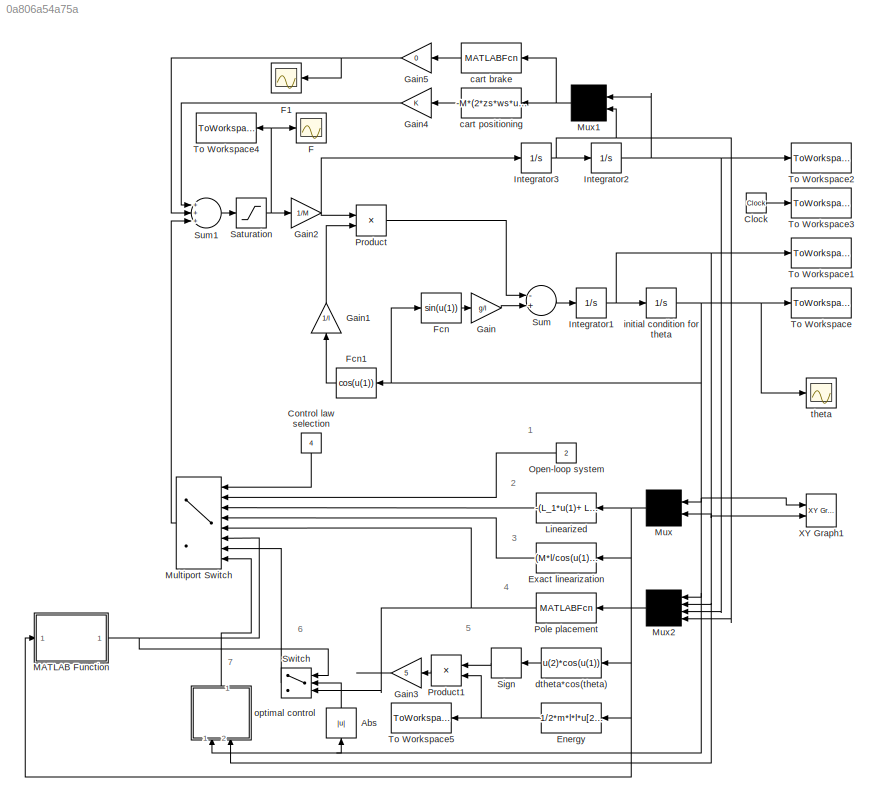
MODEL slx_0a806a54a75a
KIND model
CONFIG AbsTol = 1e-6
CONFIG EnableMultiTasking = off
CONFIG FixedStep = auto
CONFIG MaxStep = auto
CONFIG MinStep = auto
CONFIG RelTol = 1e-5
CONFIG SampleTimeConstraint = Unconstrained
CONFIG Solver = ode45
CONFIG SolverName = ode45
CONFIG StartTime = 0.0
CONFIG StopTime = 30
BLOCK [Fcn]  Linearized
  Expr = -(L_1*u(1)+ L_2*u(2))
BLOCK [Abs] Abs
BLOCK [Clock] Clock
BLOCK [Constant] Control law selection
  Value = 4
BLOCK [Fcn] Energy
  Expr = 1/2*m*l*l*u[2]*u[2]+(cos(u[1])-1)*m*g*l
BLOCK [Fcn] Exact linearization
  Expr = (M*l/cos(u(1)))*(((g/l)*sin(u(1))) + ((22.86)*u(1) + (40.5848)*u(2)))
BLOCK [Scope] F
  NumInputPorts = 1
  Ports = [1]
  ScopeSpecificationString = Simulink.scopes.TimeScopeBlockCfg('CurrentConfiguration', extmgr.ConfigurationSet(extmgr.Configuration('Core','General UI',true),extmgr.Configuration('Core','Source UI',true),extmgr.Configuration('Sources','WiredSimulink',true,'DataLoggingLimitDataPoints',true,'DataLoggingSaveFormat','Array','DataLoggingDecimation','1','DataLoggingDecimateData',true),extmgr.Configuration('Visuals','Time Domain',tr...<+882ch>
BLOCK [Scope] F1
  NumInputPorts = 1
  Ports = [1]
  ScopeSpecificationString = Simulink.scopes.TimeScopeBlockCfg('CurrentConfiguration', extmgr.ConfigurationSet(extmgr.Configuration('Core','General UI',true),extmgr.Configuration('Core','Source UI',true),extmgr.Configuration('Sources','WiredSimulink',true,'DataLoggingLimitDataPoints',true,'DataLoggingSaveFormat','Array','DataLoggingDecimation','1','DataLoggingDecimateData',true),extmgr.Configuration('Visuals','Time Domain',tr...<+882ch>
BLOCK [Fcn] Fcn
  Expr = sin(u(1))
BLOCK [Fcn] Fcn1
  Expr = cos(u(1))
BLOCK [Gain] Gain
  Gain = g/l
BLOCK [Gain] Gain1
  Gain = 1/l
BLOCK [Gain] Gain2
  Gain = 1/M
BLOCK [Gain] Gain3
  Gain = 5
BLOCK [Gain] Gain4
BLOCK [Gain] Gain5
  Gain = 0
BLOCK [Integrator] Integrator1
  Ports = [1, 1]
BLOCK [Integrator] Integrator2
  Ports = [1, 1]
BLOCK [Integrator] Integrator3
  Ports = [1, 1]
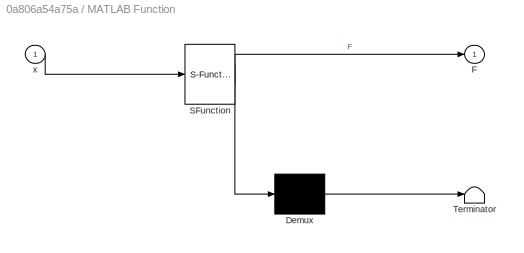
BLOCK [SubSystem] MATLAB Function
  ErrorFcn = Stateflow.Translate.translate
  PermitHierarchicalResolution = ExplicitOnly
  Ports = [1, 1]
  RequestExecContextInheritance = off
  SFBlockType = MATLAB Function
  TreatAsAtomicUnit = on
  Variant = off
BLOCK [Demux] MATLAB Function/ Demux 
  Outputs = 1
  Ports = [1, 1]
BLOCK [S-Function] MATLAB Function/ SFunction 
  EnableBusSupport = on
  FunctionName = sf_sfun
  PortCounts = [1 2]
  Ports = [1, 2]
  SFcnIsStateOwnerBlock = off
  SFunctionDeploymentMode = off
  Tag = Stateflow S-Function pendel_2016b 2
BLOCK [Terminator] MATLAB Function/ Terminator 
BLOCK [Outport] MATLAB Function/F
  IconDisplay = Port number
BLOCK [Inport] MATLAB Function/x
  IconDisplay = Port number
BLOCK [MultiPortSwitch] Multiport Switch
  Inputs = 7
  Ports = [8, 1]
BLOCK [Mux] Mux
  Inputs = 2
  Ports = [2, 1]
BLOCK [Mux] Mux1
  Inputs = 2
  Ports = [2, 1]
BLOCK [Mux] Mux2
  Ports = [4, 1]
BLOCK [Constant] Open-loop system
  Value = 2
BLOCK [MATLABFcn] Pole placement
  MATLABFcn = -K*u
  OutputDimensions = 1
  Ports = [1, 1]
BLOCK [Product] Product
  Ports = [2, 1]
BLOCK [Product] Product1
  Ports = [2, 1]
BLOCK [Saturate] Saturation
  InputPortMap = u0
  LowerLimit = -fmax
  Ports = [1, 1]
  UpperLimit = fmax
BLOCK [Signum] Sign
BLOCK [Sum] Sum
  Inputs = -+
  Ports = [2, 1]
BLOCK [Sum] Sum1
  Inputs = +++
  Ports = [3, 1]
BLOCK [Switch] Switch
  Threshold = pi/6
BLOCK [ToWorkspace] To Workspace
  MaxDataPoints = inf
  Ports = [1]
  SampleTime = -1
  VariableName = x1
BLOCK [ToWorkspace] To Workspace1
  MaxDataPoints = inf
  Ports = [1]
  SampleTime = -1
  VariableName = x2
BLOCK [ToWorkspace] To Workspace2
  MaxDataPoints = inf
  Ports = [1]
  SampleTime = -1
  VariableName = x
BLOCK [ToWorkspace] To Workspace3
  MaxDataPoints = inf
  Ports = [1]
  SampleTime = -1
  VariableName = t
BLOCK [ToWorkspace] To Workspace4
  MaxDataPoints = inf
  Ports = [1]
  SampleTime = -1
  VariableName = F
BLOCK [ToWorkspace] To Workspace5
  MaxDataPoints = inf
  Ports = [1]
  SampleTime = -1
  VariableName = E
BLOCK [Reference] XY Graph1  REF=simulink/Sinks/XY Graph
  Ports = [2]
  SourceBlock = simulink/Sinks/XY Graph
  SourceType = XY scope.
BLOCK [MATLABFcn] cart brake
  MATLABFcn = -M*wbroms*u(2)*(abs(u(1))>0.2 & sign(u(1)*u(2))>0)
  OutputDimensions = 1
  Ports = [1, 1]
BLOCK [Fcn] cart positioning
  Expr = -M*(2*zs*ws*u[2]+ws*ws*u[1])
BLOCK [Fcn] dtheta*cos(theta)
  Expr = u(2)*cos(u(1))
BLOCK [Integrator] initial condition for theta 
  InitialCondition = 20*pi/180
  Ports = [1, 1]
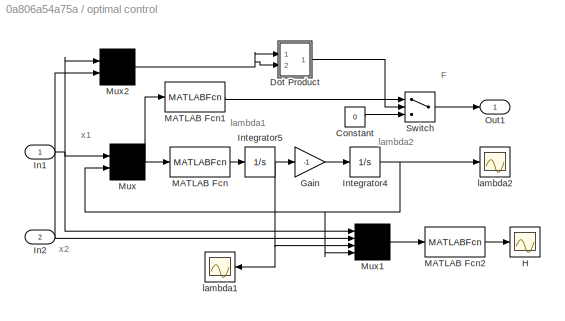
BLOCK [SubSystem] optimal control
  Ports = [2, 1]
  RequestExecContextInheritance = off
  Variant = off
BLOCK [Constant] optimal control/Constant
  Value = 0
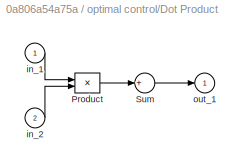
BLOCK [SubSystem] optimal control/Dot Product
  Ports = [2, 1]
  RequestExecContextInheritance = off
  Variant = off
BLOCK [Product] optimal control/Dot Product/Product
  Ports = [2, 1]
BLOCK [Sum] optimal control/Dot Product/Sum
  Inputs = +
  Ports = [1, 1]
BLOCK [Inport] optimal control/Dot Product/in_1
  IconDisplay = Port number
BLOCK [Inport] optimal control/Dot Product/in_2
  IconDisplay = Port number
  Port = 2
BLOCK [Outport] optimal control/Dot Product/out_1
  IconDisplay = Port number
  InitialOutput = 0
BLOCK [Gain] optimal control/Gain
  Gain = -1
BLOCK [Scope] optimal control/H
  NumInputPorts = 1
  Ports = [1]
  ScopeSpecificationString = Simulink.scopes.TimeScopeBlockCfg('CurrentConfiguration', extmgr.ConfigurationSet(extmgr.Configuration('Core','General UI',true),extmgr.Configuration('Core','Source UI',true),extmgr.Configuration('Sources','WiredSimulink',true,'DataLoggingLimitDataPoints',true,'DataLoggingSaveFormat','Array','DataLoggingDecimation','1','DataLoggingDecimateData',true),extmgr.Configuration('Visuals','Time Domain',tr...<+883ch>  <repeated x3 — deduplicated; at blocks: H, lambda1, lambda2>
BLOCK [Inport] optimal control/In1
  IconDisplay = Port number
BLOCK [Inport] optimal control/In2
  IconDisplay = Port number
  Port = 2
BLOCK [Integrator] optimal control/Integrator4
  InitialCondition = 0.035
  Ports = [1, 1]
BLOCK [Integrator] optimal control/Integrator5
  InitialCondition = lam1
  Ports = [1, 1]
BLOCK [MATLABFcn] optimal control/MATLAB Fcn
  MATLABFcn = -g/l*cos(u(1))*u(2)-1/(M*l)*sin(u(1))*u(2)*fmax*sign(u(2)*cos(u(1)))
  OutputDimensions = 1
  Ports = [1, 1]
BLOCK [MATLABFcn] optimal control/MATLAB Fcn1
  MATLABFcn = fmax*sign(u(2)*cos(u(1)))
  OutputDimensions = 1
  Ports = [1, 1]
BLOCK [MATLABFcn] optimal control/MATLAB Fcn2
  MATLABFcn = 1+u(3)*u(2)+u(4)*(g/l*sin(u(1))-1/(M*l)*cos(u(1))*fmax*sign(u(4)*cos(u(1))))
  OutputDimensions = 1
  Ports = [1, 1]
BLOCK [Mux] optimal control/Mux
  Inputs = 2
  Ports = [2, 1]
BLOCK [Mux] optimal control/Mux1
  Ports = [4, 1]
BLOCK [Mux] optimal control/Mux2
  Inputs = 2
  Ports = [2, 1]
BLOCK [Outport] optimal control/Out1
  IconDisplay = Port number
  InitialOutput = 0
BLOCK [Switch] optimal control/Switch
  Threshold = 0.001
BLOCK [Scope] optimal control/lambda1
  NumInputPorts = 1
  Ports = [1]
BLOCK [Scope] optimal control/lambda2
  NumInputPorts = 1
  Ports = [1]
BLOCK [Scope] theta
  NumInputPorts = 1
  Ports = [1]
  ScopeSpecificationString = Simulink.scopes.TimeScopeBlockCfg('CurrentConfiguration', extmgr.ConfigurationSet(extmgr.Configuration('Core','General UI',true),extmgr.Configuration('Core','Source UI',true),extmgr.Configuration('Sources','WiredSimulink',true,'DataLoggingLimitDataPoints',true,'DataLoggingSaveFormat','Array','DataLoggingDecimation','1','DataLoggingDecimateData',true),extmgr.Configuration('Visuals','Time Domain',tr...<+1733ch>
ANNOTATION (root): 1
ANNOTATION (root): 2
ANNOTATION (root): 3
ANNOTATION (root): 4
ANNOTATION (root): 5
ANNOTATION (root): 6
ANNOTATION (root): 7
ANNOTATION optimal control: F
ANNOTATION optimal control: lambda1
ANNOTATION optimal control: lambda2
ANNOTATION optimal control: x1
ANNOTATION optimal control: x2
LINE  Linearized:1 -> Multiport Switch:3
LINE Abs:1 -> Switch:2
LINE Clock:1 -> To Workspace3:1
LINE Control law selection:1 -> Multiport Switch:1
NET Energy:1 -> Product1:2, To Workspace5:1
LINE Exact linearization:1 -> Multiport Switch:4
LINE Fcn1:1 -> Gain1:1
LINE Fcn:1 -> Gain:1
LINE Gain1:1 -> Product:2
NET Gain2:1 -> Integrator3:1, Product:1
LINE Gain4:1 -> Sum1:1
NET Gain5:1 -> F1:1, Sum1:2
LINE Gain:1 -> Sum:2
NET Integrator1:1 -> Mux2:2, Mux:2, To Workspace1:1, XY Graph1:2, initial condition for theta :1, optimal control:2
NET Integrator2:1 -> Mux1:1, Mux2:3, To Workspace2:1
NET Integrator3:1 -> Integrator2:1, Mux1:2, Mux2:4
NET MATLAB Function:1 -> Multiport Switch:6, Switch:1
LINE Multiport Switch:1 -> Sum1:3
NET Mux1:1 -> cart brake:1, cart positioning:1
LINE Mux2:1 -> Pole placement:1
NET Mux:1 ->  Linearized:1, Energy:1, Exact linearization:1, MATLAB Function:1, dtheta*cos(theta):1
LINE Open-loop system:1 -> Multiport Switch:2
NET Pole placement:1 -> Multiport Switch:5, Switch:3
LINE Product1:1 -> Gain3:1
LINE Product:1 -> Sum:1
NET Saturation:1 -> F:1, Gain2:1, To Workspace4:1
LINE Sign:1 -> Product1:1
LINE Sum1:1 -> Saturation:1
LINE Sum:1 -> Integrator1:1
LINE Switch:1 -> Multiport Switch:7
LINE cart brake:1 -> Gain5:1
LINE cart positioning:1 -> Gain4:1
LINE dtheta*cos(theta):1 -> Sign:1
NET initial condition for theta :1 -> Abs:1, Fcn1:1, Fcn:1, Mux2:1, Mux:1, To Workspace:1, XY Graph1:1, optimal control:1, theta:1
LINE optimal control/Constant:1 -> optimal control/Switch:3
LINE optimal control/Dot Product/Product:1 -> optimal control/Dot Product/Sum:1
LINE optimal control/Dot Product/Sum:1 -> optimal control/Dot Product/out_1:1
LINE optimal control/Dot Product/in_1:1 -> optimal control/Dot Product/Product:1
LINE optimal control/Dot Product/in_2:1 -> optimal control/Dot Product/Product:2
LINE optimal control/Dot Product:1 -> optimal control/Switch:2
LINE optimal control/Gain:1 -> optimal control/Integrator4:1
NET optimal control/In1:1 -> optimal control/Mux1:1, optimal control/Mux2:1, optimal control/Mux:1
NET optimal control/In2:1 -> optimal control/Mux1:2, optimal control/Mux2:2
NET optimal control/Integrator4:1 -> optimal control/Mux1:4, optimal control/Mux:2, optimal control/lambda2:1
NET optimal control/Integrator5:1 -> optimal control/Gain:1, optimal control/Mux1:3, optimal control/lambda1:1
LINE optimal control/MATLAB Fcn1:1 -> optimal control/Switch:1
LINE optimal control/MATLAB Fcn2:1 -> optimal control/H:1
LINE optimal control/MATLAB Fcn:1 -> optimal control/Integrator5:1
LINE optimal control/Mux1:1 -> optimal control/MATLAB Fcn2:1
NET optimal control/Mux2:1 -> optimal control/Dot Product:1, optimal control/Dot Product:2
NET optimal control/Mux:1 -> optimal control/MATLAB Fcn1:1, optimal control/MATLAB Fcn:1
LINE optimal control/Switch:1 -> optimal control/Out1:1
LINE optimal control:1 -> Multiport Switch:8
note: NET lines group one-source signal fan-out (src -> all destinations, sorted); 1:1 wires keep LINE
CHART MATLAB Function states=1 transitions=1
  STATE_LABEL 'eML_blk_kernel()'
  STATE_LABEL 'SCRIPT:\nfunction F = fcn(x)\n    l = 0.7;\n    M = 0.5;\n    m = 0.5;\n    g = 9.82;\n\n    alpha = 10;\n    \n    F = alpha/2 * ...\n        (M/(m*l*x(2)*cos(x(1))) * ...\n        ((m*x(2)^2*l^2/2) - ...\n        (l*m*g*(1 - cos(x(1))))));\nend\n'
